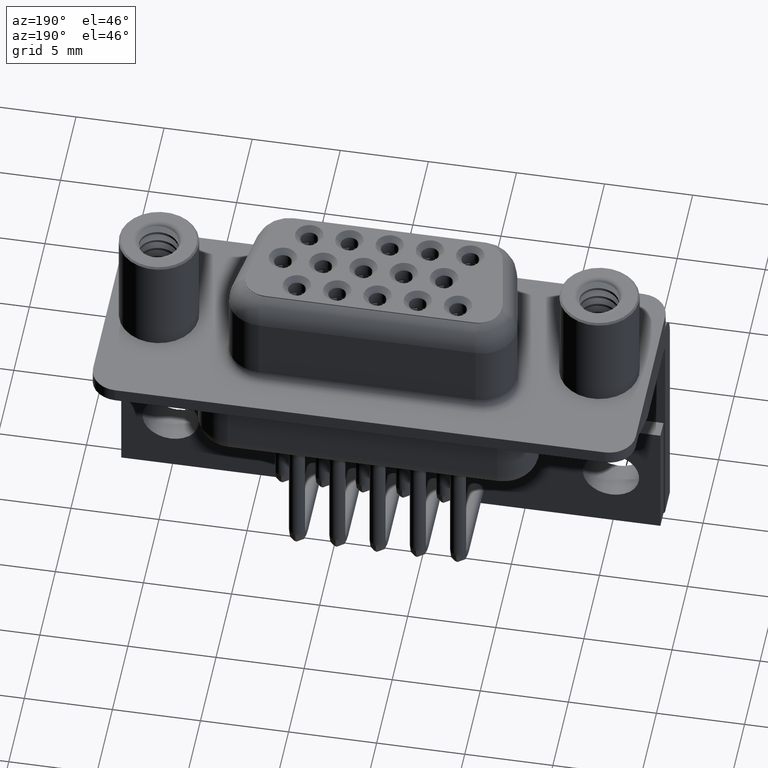
[diagram: clean part render]
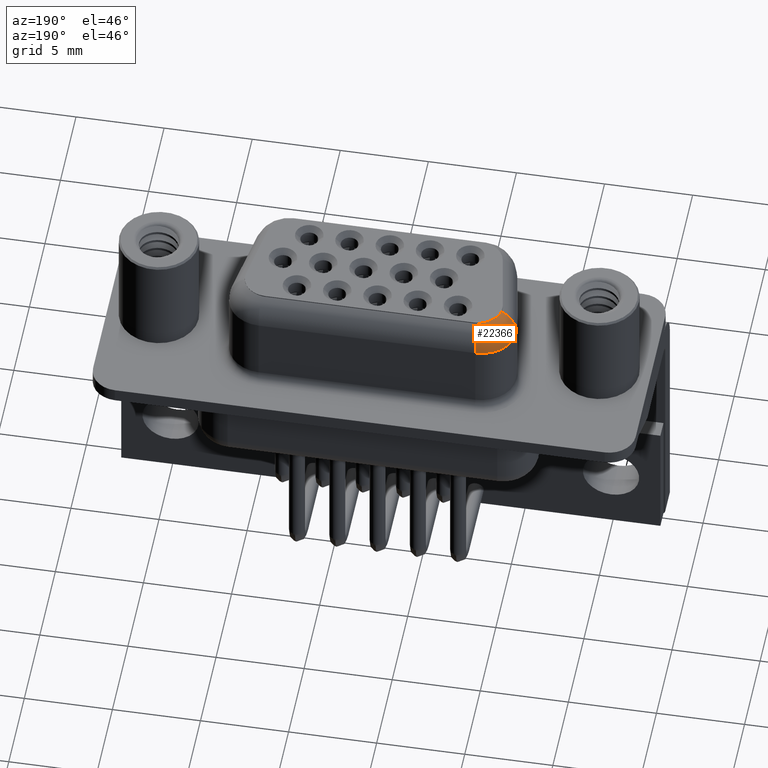
[diagram: same view with one face highlighted and labeled with its STEP entity id]
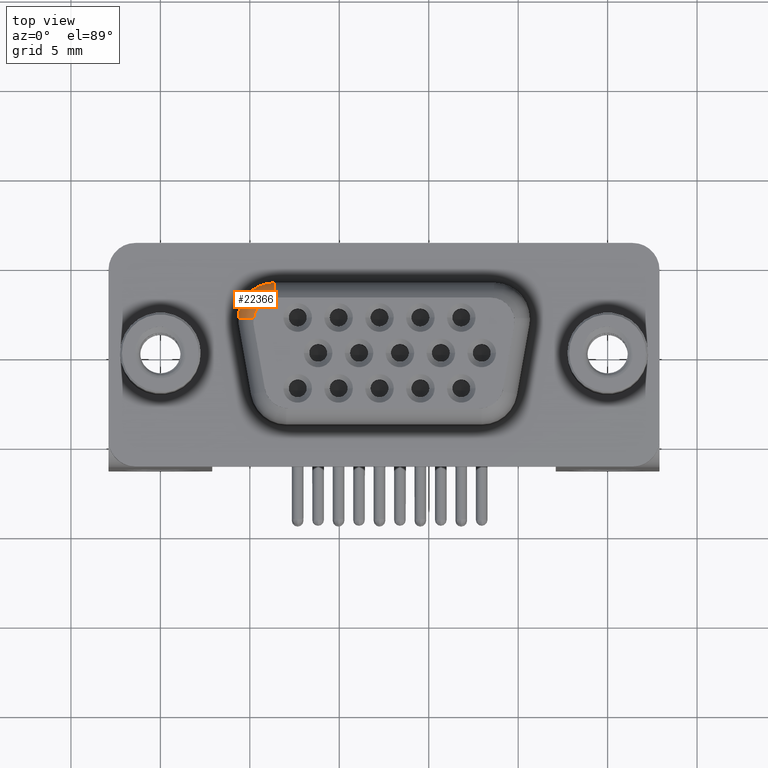
[diagram: same view with one face highlighted and labeled with its STEP entity id]
A machine part, auxiliary view. The second image highlights one B-rep face of the part: STEP entity #22366.
A second angle (top view) of the same face is appended — the face is thin or edge-on in the first view.
In plain terms, the highlighted toroidal blend (fillet) surface has major radius 0.25 mm and minor (blend) radius 1.75 mm.
Its self-contained STEP definition (entity closure, byte-faithful):
#465 = DIRECTION ( 'NONE',  ( 0.0000000000000000000, -1.000000000000000000, 0.0000000000000000000 ) ) ;
#1299 = VERTEX_POINT ( 'NONE', #16415 ) ;
#1321 = EDGE_CURVE ( 'NONE', #1299, #22738, #20856, .T. ) ;
#1362 = CARTESIAN_POINT ( 'NONE',  ( 5.214897007717118200, 1.949999999999225500, 6.159666417807647700 ) ) ;
#1580 = CARTESIAN_POINT ( 'NONE',  ( 6.068535661882930500, 3.019257727014184000, 6.181693900727608200 ) ) ;
#2037 = AXIS2_PLACEMENT_3D ( 'NONE', #17781, #7218, #19553 ) ;
#2110 = CARTESIAN_POINT ( 'NONE',  ( 6.207487334106939900, 3.063754427158587900, 6.172182877502773800 ) ) ;
#2200 = EDGE_LOOP ( 'NONE', ( #7215, #15233, #3652, #21851 ) ) ;
#2274 = CARTESIAN_POINT ( 'NONE',  ( 6.349999999999990800, 3.085102992281865100, 6.159666417806823400 ) ) ;
#2595 = CARTESIAN_POINT ( 'NONE',  ( 5.814045884720651500, 2.890699183249955800, 6.194296327517855100 ) ) ;
#3155 = CIRCLE ( 'NONE', #2037, 2.000000000000000000 ) ;
#3652 = ORIENTED_EDGE ( 'NONE', *, *, #18353, .F. ) ;
#3726 = AXIS2_PLACEMENT_3D ( 'NONE', #11025, #465, #12805 ) ;
#4642 = AXIS2_PLACEMENT_3D ( 'NONE', #5127, #12140, #21002 ) ;
#4813 = TOROIDAL_SURFACE ( 'NONE', #4642, 0.2500000000000000000, 1.750000000000000000 ) ;
#5127 = CARTESIAN_POINT ( 'NONE',  ( 6.349999999999991700, 1.949999999999997700, 4.650000000000000400 ) ) ;
#7215 = ORIENTED_EDGE ( 'NONE', *, *, #11704, .F. ) ;
#7218 = DIRECTION ( 'NONE',  ( -0.0000000000000000000, -0.0000000000000000000, -1.000000000000000000 ) ) ;
#7789 = CARTESIAN_POINT ( 'NONE',  ( 6.349999999999990800, 3.085102992281865100, 6.159666417806823400 ) ) ;
#8266 = DIRECTION ( 'NONE',  ( 1.000000000000000000, 0.0000000000000000000, 0.0000000000000000000 ) ) ;
#8854 = CARTESIAN_POINT ( 'NONE',  ( 5.695600949331109500, 2.804935602370259000, 6.197513745258433500 ) ) ;
#9773 = CARTESIAN_POINT ( 'NONE',  ( 6.349999999999991700, 3.949999999999998000, 4.650000000000000400 ) ) ;
#10367 = EDGE_CURVE ( 'NONE', #22335, #17629, #3155, .T. ) ;
#10411 = CIRCLE ( 'NONE', #12001, 1.749999999999999800 ) ;
#11025 = CARTESIAN_POINT ( 'NONE',  ( 6.099999999999991700, 1.949999999999997700, 4.650000000000000400 ) ) ;
#11704 = EDGE_CURVE ( 'NONE', #1299, #22335, #15556, .T. ) ;
#12001 = AXIS2_PLACEMENT_3D ( 'NONE', #18840, #8266, #20603 ) ;
#12140 = DIRECTION ( 'NONE',  ( -0.0000000000000000000, -0.0000000000000000000, -1.000000000000000000 ) ) ;
#12805 = DIRECTION ( 'NONE',  ( 0.0000000000000000000, 0.0000000000000000000, -1.000000000000000000 ) ) ;
#12846 = CARTESIAN_POINT ( 'NONE',  ( 5.257155642283924700, 2.232098147294606900, 6.184442251370470900 ) ) ;
#13742 = CARTESIAN_POINT ( 'NONE',  ( 4.349999999999991700, 1.949999999999997700, 4.650000000000000400 ) ) ;
#14173 = FACE_OUTER_BOUND ( 'NONE', #2200, .T. ) ;
#15032 = CARTESIAN_POINT ( 'NONE',  ( 5.392933727309682900, 2.501827834235559300, 6.197470147097671900 ) ) ;
#15233 = ORIENTED_EDGE ( 'NONE', *, *, #1321, .T. ) ;
#15556 = CIRCLE ( 'NONE', #3726, 1.749999999999999800 ) ;
#16415 = CARTESIAN_POINT ( 'NONE',  ( 5.214897007717118200, 1.949999999999225500, 6.159666417807647700 ) ) ;
#17629 = VERTEX_POINT ( 'NONE', #9773 ) ;
#17781 = CARTESIAN_POINT ( 'NONE',  ( 6.349999999999991700, 1.949999999999997700, 4.650000000000000400 ) ) ;
#18353 = EDGE_CURVE ( 'NONE', #17629, #22738, #10411, .T. ) ;
#18840 = CARTESIAN_POINT ( 'NONE',  ( 6.349999999999991700, 2.199999999999998000, 4.650000000000000400 ) ) ;
#19553 = DIRECTION ( 'NONE',  ( -1.000000000000000000, 0.0000000000000000000, 0.0000000000000000000 ) ) ;
#20603 = DIRECTION ( 'NONE',  ( 0.0000000000000000000, 0.0000000000000000000, -1.000000000000000000 ) ) ;
#20856 = B_SPLINE_CURVE_WITH_KNOTS ( 'NONE', 3,
 ( #1362, #12846, #15032, #8854, #2595, #1580, #2110, #2274 ),
 .UNSPECIFIED., .F., .F.,
 ( 4, 2, 2, 4 ),
 ( 0.0003491369824329564900, 0.001204615933219644800, 0.001632355408612987700, 0.002060094884006331000 ),
 .UNSPECIFIED. ) ;
#21002 = DIRECTION ( 'NONE',  ( -1.000000000000000000, 0.0000000000000000000, 0.0000000000000000000 ) ) ;
#21851 = ORIENTED_EDGE ( 'NONE', *, *, #10367, .F. ) ;
#22335 = VERTEX_POINT ( 'NONE', #13742 ) ;
#22366 = ADVANCED_FACE ( 'NONE', ( #14173 ), #4813, .T. ) ;
#22738 = VERTEX_POINT ( 'NONE', #7789 ) ;